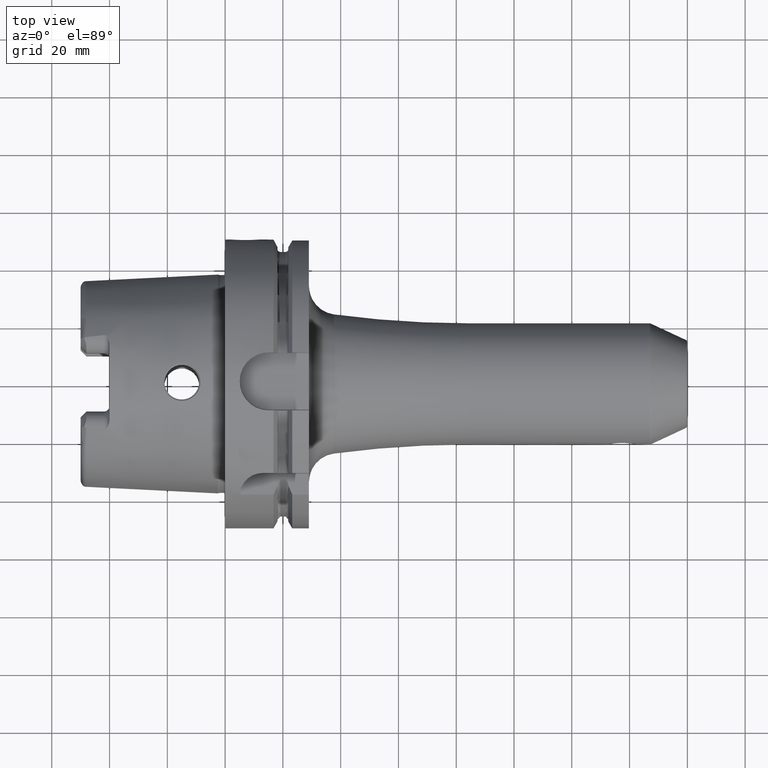
[diagram: clean part render]
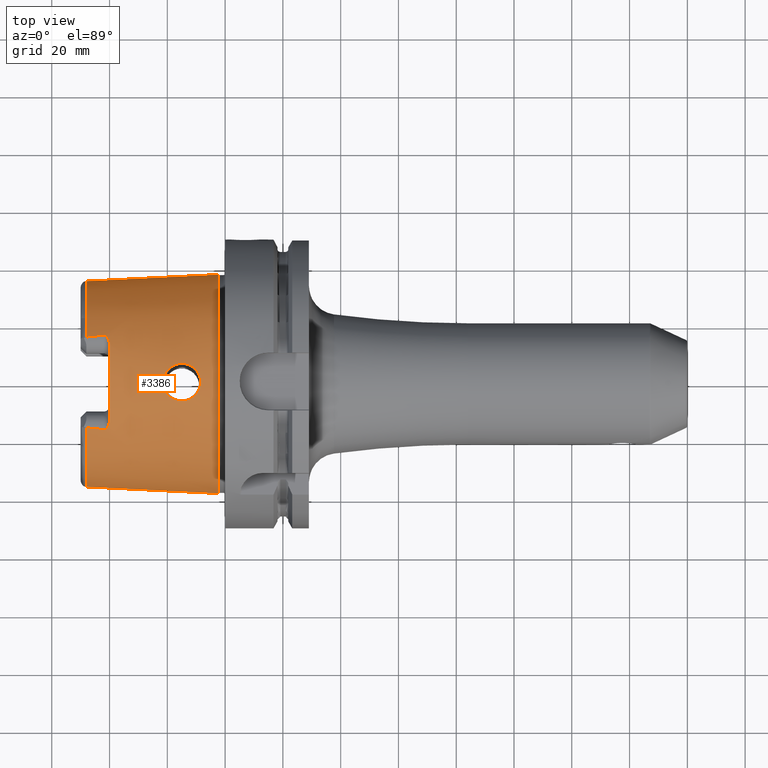
[diagram: same view with one face highlighted and labeled with its STEP entity id]
A machine part, top view. The second image highlights one B-rep face of the part: STEP entity #3386.
In plain terms, the highlighted conical surface has half-angle 2.868 deg.
Its self-contained STEP definition (entity closure, byte-faithful):
#2=CARTESIAN_POINT('',(-4.810007448473E1,-1.567653238626E1,3.196E1));
#3=CARTESIAN_POINT('',(-4.743649089753E1,-1.575202511592E1,3.196E1));
#4=CARTESIAN_POINT('',(-4.609985749196E1,-1.590320831227E1,3.196E1));
#5=CARTESIAN_POINT('',(-4.406668280177E1,-1.613055880919E1,3.196E1));
#6=CARTESIAN_POINT('',(-4.269206894520E1,-1.628254944441E1,3.196E1));
#7=CARTESIAN_POINT('',(-4.2E1,-1.635864758744E1,3.196E1));
#9=CARTESIAN_POINT('',(-4.E1,0.E0,0.E0));
#10=DIRECTION('',(1.E0,0.E0,0.E0));
#11=DIRECTION('',(0.E0,3.574556786365E-1,9.339301032789E-1));
#12=AXIS2_PLACEMENT_3D('',#9,#10,#11);
#14=CARTESIAN_POINT('',(-4.2E1,1.635864758744E1,3.196E1));
#15=CARTESIAN_POINT('',(-4.269204070145E1,1.628255255002E1,3.196E1));
#16=CARTESIAN_POINT('',(-4.406661691692E1,1.613056612298E1,3.196E1));
#17=CARTESIAN_POINT('',(-4.609979244919E1,1.590321563865E1,3.196E1));
#18=CARTESIAN_POINT('',(-4.743646302974E1,1.575202828631E1,3.196E1));
#19=CARTESIAN_POINT('',(-4.810007448473E1,1.567653238626E1,3.196E1));
#21=CARTESIAN_POINT('',(-2.5E0,0.E0,0.E0));
#22=DIRECTION('',(1.E0,0.E0,0.E0));
#23=DIRECTION('',(0.E0,1.E0,0.E0));
#24=AXIS2_PLACEMENT_3D('',#21,#22,#23);
#26=CARTESIAN_POINT('',(-2.149938207697E1,5.552926221647E-11,3.693037254664E1));
#27=CARTESIAN_POINT('',(-2.149947810722E1,2.456946967410E-1,3.693041400584E1));
#28=CARTESIAN_POINT('',(-2.146978943123E1,7.663421073483E-1,3.692663668754E1));
#29=CARTESIAN_POINT('',(-2.132902699242E1,1.552723327933E0,3.690919478302E1));
#30=CARTESIAN_POINT('',(-2.108091480959E1,2.342139536845E0,3.687974365394E1));
#31=CARTESIAN_POINT('',(-2.073440330363E1,3.094103832942E0,3.684140909161E1));
#32=CARTESIAN_POINT('',(-2.029456045373E1,3.796705318232E0,3.679744070735E1));
#33=CARTESIAN_POINT('',(-1.976895967621E1,4.437440706102E0,3.675180792921E1));
#34=CARTESIAN_POINT('',(-1.916766491360E1,5.004833501251E0,3.670884542936E1));
#35=CARTESIAN_POINT('',(-1.850089510031E1,5.490460623479E0,3.667275311991E1));
#36=CARTESIAN_POINT('',(-1.777939225152E1,5.887431777884E0,3.664739565010E1));
#37=CARTESIAN_POINT('',(-1.701424609593E1,6.190220322635E0,3.663607600264E1));
#38=CARTESIAN_POINT('',(-1.621758055837E1,6.394419176819E0,3.664131821143E1));
#39=CARTESIAN_POINT('',(-1.539955429301E1,6.497326105441E0,3.666474029556E1));
#40=CARTESIAN_POINT('',(-1.457114975166E1,6.496134002949E0,3.670710840669E1));
#41=CARTESIAN_POINT('',(-1.375127425398E1,6.390454994673E0,3.676745544266E1));
#42=CARTESIAN_POINT('',(-1.294983719070E1,6.181706493026E0,3.684404556607E1));
#43=CARTESIAN_POINT('',(-1.217938970715E1,5.872066509057E0,3.693403258601E1));
#44=CARTESIAN_POINT('',(-1.145343003562E1,5.466036101540E0,3.703341626103E1));
#45=CARTESIAN_POINT('',(-1.078465658031E1,4.970022940288E0,3.713742863004E1));
#46=CARTESIAN_POINT('',(-1.018517891880E1,4.392789013038E0,3.724075525816E1));
#47=CARTESIAN_POINT('',(-9.665388344352E0,3.744837411386E0,3.733802077293E1));
#48=CARTESIAN_POINT('',(-9.234092519568E0,3.038687491876E0,3.742410507514E1));
#49=CARTESIAN_POINT('',(-8.897351452215E0,2.287331206380E0,3.749468513875E1));
#50=CARTESIAN_POINT('',(-8.658527750933E0,1.501792221622E0,3.754652778726E1));
#51=CARTESIAN_POINT('',(-8.527369438248E0,7.337668322055E-1,3.757562813366E1));
#52=CARTESIAN_POINT('',(-8.500550849541E0,2.307484502453E-1,3.758164606668E1));
#53=CARTESIAN_POINT('',(-8.500618238409E0,-3.201212427053E-11,
3.758161093072E1));
#55=CARTESIAN_POINT('',(-8.500618238409E0,-3.201212427053E-11,
3.758161093072E1));
#56=CARTESIAN_POINT('',(-8.500529243712E0,-2.424312186462E-1,3.758165761842E1));
#57=CARTESIAN_POINT('',(-8.529377584627E0,-7.570713761110E-1,3.757517365272E1));
#58=CARTESIAN_POINT('',(-8.666699960505E0,-1.535920192154E0,3.754473037167E1));
#59=CARTESIAN_POINT('',(-8.909712492800E0,-2.320075305293E0,3.749204213674E1));
#60=CARTESIAN_POINT('',(-9.250504215006E0,-3.069650750447E0,3.742074072411E1));
#61=CARTESIAN_POINT('',(-9.685687617568E0,-3.773592271729E0,3.733408895737E1));
#62=CARTESIAN_POINT('',(-1.020908185061E1,-4.418816591912E0,3.723645352953E1));
#63=CARTESIAN_POINT('',(-1.081164311031E1,-4.992724782849E0,3.713300191729E1));
#64=CARTESIAN_POINT('',(-1.148289197008E1,-5.484961003997E0,3.702910971345E1));
#65=CARTESIAN_POINT('',(-1.221077052890E1,-5.886958600290E0,3.693005620282E1));
#66=CARTESIAN_POINT('',(-1.298272715167E1,-6.192450910075E0,3.684056019680E1));
#67=CARTESIAN_POINT('',(-1.378543745730E1,-6.397007236175E0,3.676457229973E1));
#68=CARTESIAN_POINT('',(-1.460657276070E1,-6.498354658048E0,3.670491060908E1));
#69=CARTESIAN_POINT('',(-1.543495839616E1,-6.495033034286E0,3.666334714016E1));
#70=CARTESIAN_POINT('',(-1.625254215847E1,-6.387680563827E0,3.664072182306E1));
#71=CARTESIAN_POINT('',(-1.704827269515E1,-6.179075952149E0,3.663623858926E1));
#72=CARTESIAN_POINT('',(-1.781166108930E1,-5.872129661425E0,3.664822647582E1));
#73=CARTESIAN_POINT('',(-1.853088883617E1,-5.471276112331E0,3.667411627299E1));
#74=CARTESIAN_POINT('',(-1.919496044775E1,-4.982042332370E0,3.671058230959E1));
#75=CARTESIAN_POINT('',(-1.979312959260E1,-4.411388967116E0,3.675374151488E1));
#76=CARTESIAN_POINT('',(-2.031520136204E1,-3.767815751250E0,3.679938652908E1));
#77=CARTESIAN_POINT('',(-2.075116173440E1,-3.062888856216E0,3.684318827995E1));
#78=CARTESIAN_POINT('',(-2.109352623852E1,-2.309166702590E0,3.688120055672E1));
#79=CARTESIAN_POINT('',(-2.133733752753E1,-1.518482485311E0,3.691020909579E1));
#80=CARTESIAN_POINT('',(-2.147183542910E1,-7.429704319279E-1,3.692690027450E1));
#81=CARTESIAN_POINT('',(-2.149945558988E1,-2.340112752743E-1,3.693040395664E1));
#82=CARTESIAN_POINT('',(-2.149938207697E1,5.552926221647E-11,3.693037254664E1));
#248=CARTESIAN_POINT('',(-4.044615405310E1,1.501E1,3.270080868281E1));
#249=CARTESIAN_POINT('',(-4.036716971646E1,1.480714421409E1,3.279827559643E1));
#250=CARTESIAN_POINT('',(-4.023151678165E1,1.441318283024E1,3.298193753654E1));
#251=CARTESIAN_POINT('',(-4.009402199227E1,1.386111148947E1,3.322490472400E1));
#252=CARTESIAN_POINT('',(-4.001617021866E1,1.334582492697E1,3.343918234932E1));
#253=CARTESIAN_POINT('',(-4.E1,1.302441475567E1,3.356551938374E1));
#254=CARTESIAN_POINT('',(-4.E1,1.286965552579E1,3.362475247340E1));
#312=CARTESIAN_POINT('',(-4.810007448473E1,0.E0,0.E0));
#313=DIRECTION('',(1.E0,0.E0,0.E0));
#314=DIRECTION('',(0.E0,1.E0,0.E0));
#315=AXIS2_PLACEMENT_3D('',#312,#313,#314);
#387=CARTESIAN_POINT('',(-4.810007448473E1,0.E0,0.E0));
#388=DIRECTION('',(1.E0,0.E0,0.E0));
#389=DIRECTION('',(0.E0,-4.403806547453E-1,8.978111599474E-1));
#390=AXIS2_PLACEMENT_3D('',#387,#388,#389);
#561=DIRECTION('',(-9.987473526255E-1,5.003724236654E-2,0.E0));
#562=VECTOR('',#561,4.565726694029E1);
#563=CARTESIAN_POINT('',(-2.5E0,-3.788225E1,0.E0));
#564=LINE('',#563,#562);
#570=DIRECTION('',(-9.987473526255E-1,-5.003724236654E-2,0.E0));
#571=VECTOR('',#570,4.565726694029E1);
#572=CARTESIAN_POINT('',(-2.5E0,3.788225E1,0.E0));
#573=LINE('',#572,#571);
#2761=CARTESIAN_POINT('',(-4.E1,-1.286965552579E1,3.362475247340E1));
#2762=CARTESIAN_POINT('',(-4.E1,-1.302441541648E1,3.356551913082E1));
#2763=CARTESIAN_POINT('',(-4.001617018251E1,-1.334582535629E1,
3.343918219674E1));
#2764=CARTESIAN_POINT('',(-4.009402242674E1,-1.386111200207E1,
3.322490442026E1));
#2765=CARTESIAN_POINT('',(-4.023151276023E1,-1.441316885171E1,
3.298194383001E1));
#2766=CARTESIAN_POINT('',(-4.036716744567E1,-1.480713838201E1,
3.279827839859E1));
#2767=CARTESIAN_POINT('',(-4.044615405310E1,-1.501E1,3.270080868281E1));
#2843=CARTESIAN_POINT('',(-4.044615405310E1,-1.501E1,3.270080868281E1));
#2844=CARTESIAN_POINT('',(-4.048970886745E1,-1.512186200292E1,
3.264706190833E1));
#2845=CARTESIAN_POINT('',(-4.058203784729E1,-1.533106618308E1,
3.254453864538E1));
#2846=CARTESIAN_POINT('',(-4.073432021554E1,-1.560191666355E1,
3.240695208273E1));
#2847=CARTESIAN_POINT('',(-4.089735125525E1,-1.582886077686E1,
3.228748605874E1));
#2848=CARTESIAN_POINT('',(-4.106769081077E1,-1.601331012900E1,
3.218678608847E1));
#2849=CARTESIAN_POINT('',(-4.125393253486E1,-1.616457753287E1,
3.210056649743E1));
#2850=CARTESIAN_POINT('',(-4.144626840802E1,-1.627335249792E1,
3.203468630644E1));
#2851=CARTESIAN_POINT('',(-4.163743535609E1,-1.633966611997E1,
3.199012198327E1));
#2852=CARTESIAN_POINT('',(-4.181861360320E1,-1.636784997544E1,
3.196549826812E1));
#2853=CARTESIAN_POINT('',(-4.194004005827E1,-1.636524063030E1,3.196E1));
#2854=CARTESIAN_POINT('',(-4.2E1,-1.635864758744E1,3.196E1));
#2864=CARTESIAN_POINT('',(-4.2E1,1.635864758744E1,3.196E1));
#2865=CARTESIAN_POINT('',(-4.193871342572E1,1.636538650345E1,3.196E1));
#2866=CARTESIAN_POINT('',(-4.181450390691E1,1.636814761969E1,3.196557762379E1));
#2867=CARTESIAN_POINT('',(-4.162243507007E1,1.633619695788E1,3.199274042675E1));
#2868=CARTESIAN_POINT('',(-4.143278453244E1,1.626680995517E1,3.203876886227E1));
#2869=CARTESIAN_POINT('',(-4.124494122381E1,1.615802805146E1,3.210436522250E1));
#2870=CARTESIAN_POINT('',(-4.106242535143E1,1.600818739776E1,3.218962850171E1));
#2871=CARTESIAN_POINT('',(-4.089248890939E1,1.582281513116E1,3.229072139863E1));
#2872=CARTESIAN_POINT('',(-4.073124146543E1,1.559684012110E1,3.240956146553E1));
#2873=CARTESIAN_POINT('',(-4.058058611384E1,1.532793070389E1,3.254608698749E1));
#2874=CARTESIAN_POINT('',(-4.048925691866E1,1.512070126105E1,3.264761961452E1));
#2875=CARTESIAN_POINT('',(-4.044615405310E1,1.501E1,3.270080868281E1));
#2897=CARTESIAN_POINT('',(-2.5E0,3.788225E1,0.E0));
#2898=CARTESIAN_POINT('',(-2.5E0,-3.788225E1,0.E0));
#2899=VERTEX_POINT('',#2897);
#2900=VERTEX_POINT('',#2898);
#2901=CARTESIAN_POINT('',(-4.810007448473E1,3.559768626831E1,0.E0));
#2902=VERTEX_POINT('',#2901);
#2903=CARTESIAN_POINT('',(-4.810007448473E1,-3.559768626831E1,0.E0));
#2904=VERTEX_POINT('',#2903);
#2941=CARTESIAN_POINT('',(-4.810007448473E1,1.567653238626E1,3.196E1));
#2942=VERTEX_POINT('',#2941);
#2943=CARTESIAN_POINT('',(-4.810007448473E1,-1.567653238626E1,3.196E1));
#2944=VERTEX_POINT('',#2943);
#2953=CARTESIAN_POINT('',(-4.E1,1.286965552579E1,3.362475247340E1));
#2954=VERTEX_POINT('',#2953);
#2957=CARTESIAN_POINT('',(-4.2E1,1.635864758744E1,3.196E1));
#2958=VERTEX_POINT('',#2957);
#2959=CARTESIAN_POINT('',(-4.E1,-1.286965552579E1,3.362475247340E1));
#2960=VERTEX_POINT('',#2959);
#2963=CARTESIAN_POINT('',(-4.2E1,-1.635864758744E1,3.196E1));
#2964=VERTEX_POINT('',#2963);
#2965=VERTEX_POINT('',#2875);
#2966=VERTEX_POINT('',#2843);
#3106=VERTEX_POINT('',#26);
#3107=VERTEX_POINT('',#53);
#3349=CARTESIAN_POINT('',(-2.530003724237E1,0.E0,0.E0));
#3350=DIRECTION('',(1.E0,0.E0,0.E0));
#3351=DIRECTION('',(0.E0,-1.E0,0.E0));
#3352=AXIS2_PLACEMENT_3D('',#3349,#3350,#3351);
#3353=CONICAL_SURFACE('',#3352,3.673996813416E1,2.868120487315E0);
#3355=ORIENTED_EDGE('',*,*,#3354,.T.);
#3357=ORIENTED_EDGE('',*,*,#3356,.F.);
#3359=ORIENTED_EDGE('',*,*,#3358,.F.);
#3361=ORIENTED_EDGE('',*,*,#3360,.F.);
#3363=ORIENTED_EDGE('',*,*,#3362,.F.);
#3365=ORIENTED_EDGE('',*,*,#3364,.F.);
#3367=ORIENTED_EDGE('',*,*,#3366,.T.);
#3369=ORIENTED_EDGE('',*,*,#3368,.F.);
#3371=ORIENTED_EDGE('',*,*,#3370,.F.);
#3373=ORIENTED_EDGE('',*,*,#3372,.T.);
#3375=ORIENTED_EDGE('',*,*,#3374,.T.);
#3377=ORIENTED_EDGE('',*,*,#3376,.F.);
#3378=EDGE_LOOP('',(#3355,#3357,#3359,#3361,#3363,#3365,#3367,#3369,#3371,#3373,
#3375,#3377));
#3379=FACE_OUTER_BOUND('',#3378,.F.);
#3381=ORIENTED_EDGE('',*,*,#3380,.F.);
#3383=ORIENTED_EDGE('',*,*,#3382,.F.);
#3384=EDGE_LOOP('',(#3381,#3383));
#3385=FACE_BOUND('',#3384,.F.);
#3386=ADVANCED_FACE('',(#3379,#3385),#3353,.T.);
#8=B_SPLINE_CURVE_WITH_KNOTS('',3,(#2,#3,#4,#5,#6,#7),.UNSPECIFIED.,.F.,.F.,(4,
1,1,4),(0.E0,3.333333333333E-1,6.666666666667E-1,1.E0),.UNSPECIFIED.);
#13=CIRCLE('',#12,3.60035E1);
#20=B_SPLINE_CURVE_WITH_KNOTS('',3,(#14,#15,#16,#17,#18,#19),.UNSPECIFIED.,.F.,
.F.,(4,1,1,4),(0.E0,3.333333333333E-1,6.666666666667E-1,1.E0),.UNSPECIFIED.);
#25=CIRCLE('',#24,3.788225E1);
#54=B_SPLINE_CURVE_WITH_KNOTS('',3,(#26,#27,#28,#29,#30,#31,#32,#33,#34,#35,#36,
#37,#38,#39,#40,#41,#42,#43,#44,#45,#46,#47,#48,#49,#50,#51,#52,#53),
.UNSPECIFIED.,.F.,.F.,(4,1,1,1,1,1,1,1,1,1,1,1,1,1,1,1,1,1,1,1,1,1,1,1,1,4),(
0.E0,3.626792904996E-2,7.667308714875E-2,1.170782452475E-1,1.574834033463E-1,
1.978885614451E-1,2.382937195439E-1,2.786988776427E-1,3.191040357415E-1,
3.595091938403E-1,3.999143519391E-1,4.403195100379E-1,4.807246681367E-1,
5.211298262355E-1,5.615349843343E-1,6.019401424331E-1,6.423453005319E-1,
6.827504586307E-1,7.231556167295E-1,7.635607748283E-1,8.039659329271E-1,
8.443710910259E-1,8.847762491247E-1,9.251814072235E-1,9.655865653223E-1,1.E0),
.UNSPECIFIED.);
#83=B_SPLINE_CURVE_WITH_KNOTS('',3,(#55,#56,#57,#58,#59,#60,#61,#62,#63,#64,#65,
#66,#67,#68,#69,#70,#71,#72,#73,#74,#75,#76,#77,#78,#79,#80,#81,#82),
.UNSPECIFIED.,.F.,.F.,(4,1,1,1,1,1,1,1,1,1,1,1,1,1,1,1,1,1,1,1,1,1,1,1,1,4),(
0.E0,3.618329534544E-2,7.658712835106E-2,1.169909613567E-1,1.573947943623E-1,
1.977986273679E-1,2.382024603735E-1,2.786062933791E-1,3.190101263848E-1,
3.594139593904E-1,3.998177923960E-1,4.402216254016E-1,4.806254584072E-1,
5.210292914128E-1,5.614331244184E-1,6.018369574241E-1,6.422407904297E-1,
6.826446234353E-1,7.230484564409E-1,7.634522894465E-1,8.038561224521E-1,
8.442599554578E-1,8.846637884634E-1,9.250676214690E-1,9.654714544746E-1,1.E0),
.UNSPECIFIED.);
#255=B_SPLINE_CURVE_WITH_KNOTS('',3,(#248,#249,#250,#251,#252,#253,#254),
.UNSPECIFIED.,.F.,.F.,(4,1,1,1,4),(0.E0,2.5E-1,5.E-1,7.5E-1,1.E0),
.UNSPECIFIED.);
#316=CIRCLE('',#315,3.559768626831E1);
#391=CIRCLE('',#390,3.559768626831E1);
#2768=B_SPLINE_CURVE_WITH_KNOTS('',3,(#2761,#2762,#2763,#2764,#2765,#2766,
#2767),.UNSPECIFIED.,.F.,.F.,(4,1,1,1,4),(0.E0,2.5E-1,5.E-1,7.5E-1,1.E0),
.UNSPECIFIED.);
#2855=B_SPLINE_CURVE_WITH_KNOTS('',3,(#2843,#2844,#2845,#2846,#2847,#2848,#2849,
#2850,#2851,#2852,#2853,#2854),.UNSPECIFIED.,.F.,.F.,(4,1,1,1,1,1,1,1,1,4),
(0.E0,1.111111111111E-1,2.222222222222E-1,3.333333333333E-1,4.444444444444E-1,
5.555555555556E-1,6.666666666667E-1,7.777777777778E-1,8.888888888889E-1,1.E0),
.UNSPECIFIED.);
#2876=B_SPLINE_CURVE_WITH_KNOTS('',3,(#2864,#2865,#2866,#2867,#2868,#2869,#2870,
#2871,#2872,#2873,#2874,#2875),.UNSPECIFIED.,.F.,.F.,(4,1,1,1,1,1,1,1,1,4),
(0.E0,1.111111111111E-1,2.222222222222E-1,3.333333333333E-1,4.444444444444E-1,
5.555555555556E-1,6.666666666667E-1,7.777777777778E-1,8.888888888889E-1,1.E0),
.UNSPECIFIED.);
#3354=EDGE_CURVE('',#2944,#2964,#8,.T.);
#3356=EDGE_CURVE('',#2966,#2964,#2855,.T.);
#3358=EDGE_CURVE('',#2960,#2966,#2768,.T.);
#3360=EDGE_CURVE('',#2954,#2960,#13,.T.);
#3362=EDGE_CURVE('',#2965,#2954,#255,.T.);
#3364=EDGE_CURVE('',#2958,#2965,#2876,.T.);
#3366=EDGE_CURVE('',#2958,#2942,#20,.T.);
#3368=EDGE_CURVE('',#2902,#2942,#316,.T.);
#3370=EDGE_CURVE('',#2899,#2902,#573,.T.);
#3372=EDGE_CURVE('',#2899,#2900,#25,.T.);
#3374=EDGE_CURVE('',#2900,#2904,#564,.T.);
#3376=EDGE_CURVE('',#2944,#2904,#391,.T.);
#3380=EDGE_CURVE('',#3106,#3107,#54,.T.);
#3382=EDGE_CURVE('',#3107,#3106,#83,.T.);